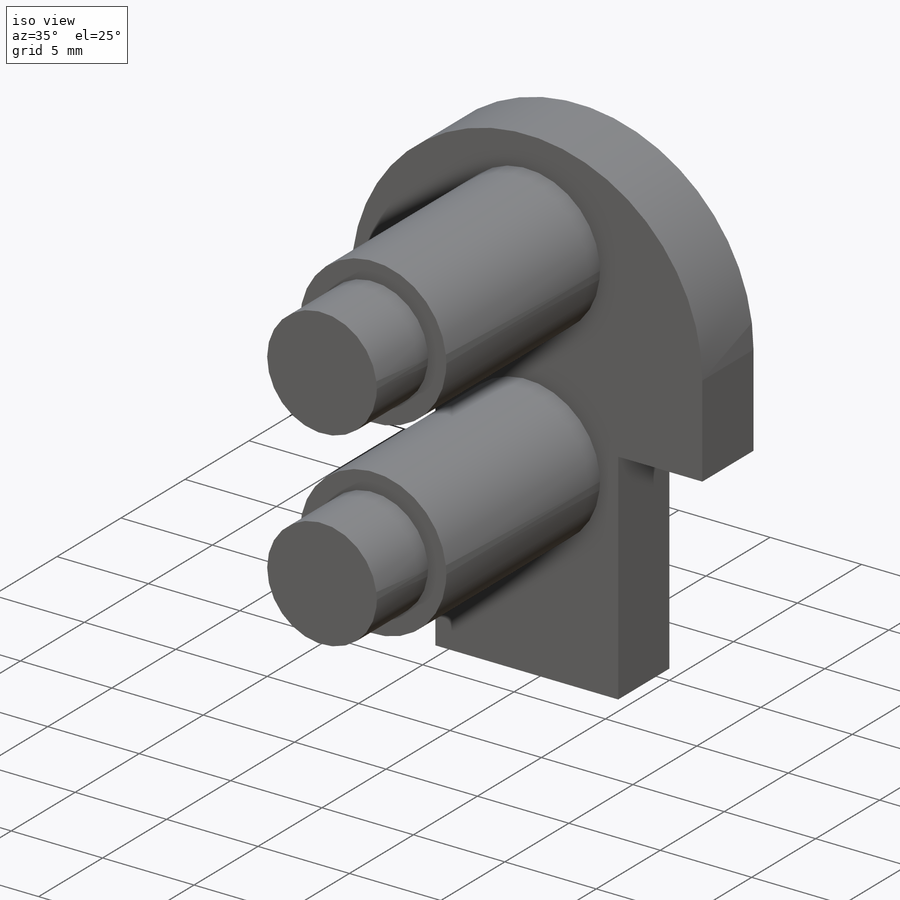
[diagram: iso view]
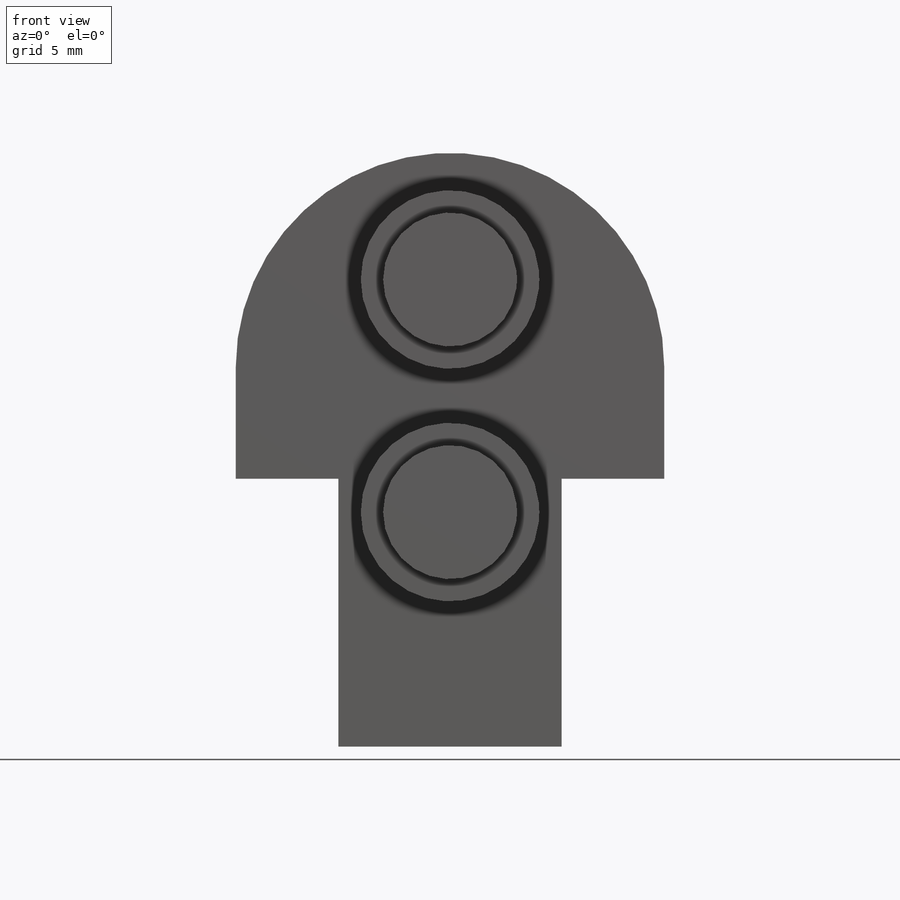
[diagram: front view]
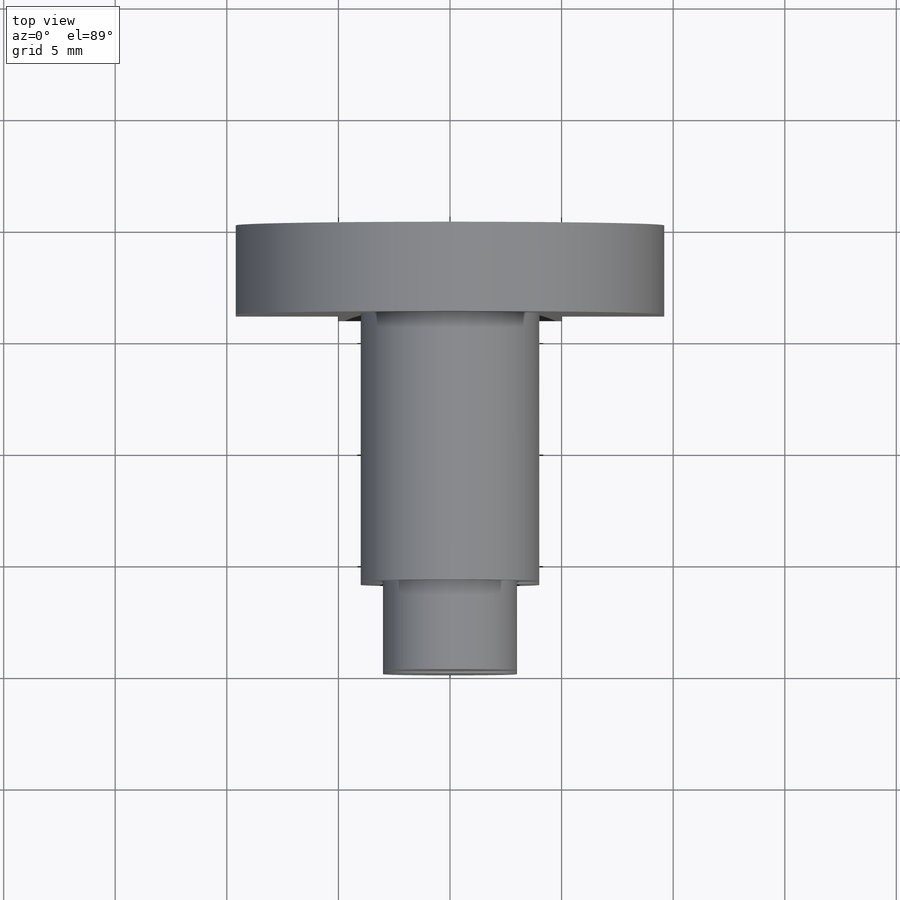
[diagram: top view]
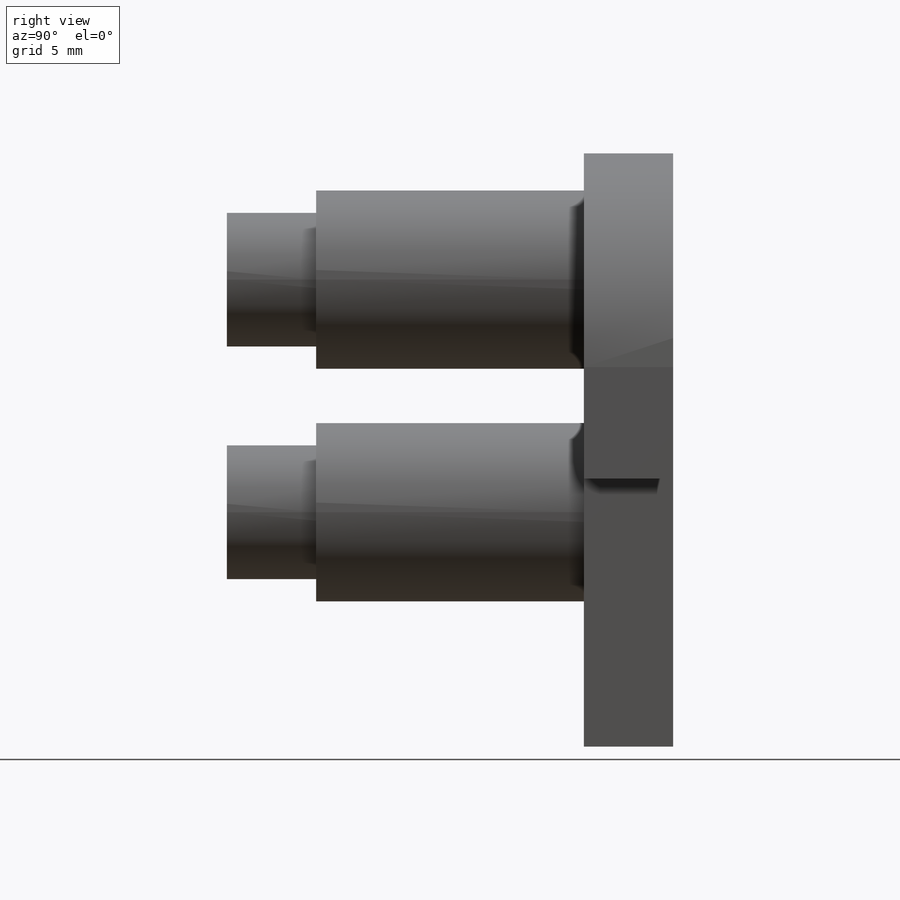
[diagram: right view]
SOLIDWORKS PART (.sldprt)
format: sldprt  version: not decoded by parser v0  size: 242,688 bytes
history: native  units: mm
features: sketch x4, extrude x3, material x1, cut_extrude x1 (+13 scaffold rows collapsed)
feature tree (22):
  scaffold x13  (default folders/planes/origin — collapsed)
  material  "Material <not specified>"
  sketch  "Sketch1"  dims[c1.D5=3.0mm c1.D6=5.0mm c2.D5=~13.691582mm c2.D6=5.0mm c2.D1=4.0mm c2.D2=4.0mm c2.D3=4.0mm c2.D4=10.0mm c2.D7=3.0mm c3.D5=14.0mm c3.D7=9.5mm c3.D2=2.0mm c3.D3=3.5mm c3.D4=6.5mm c4.D5=8.0mm c4.D6=14.0mm c4.D7=4.0mm c4.D2=2.0mm c4.D3=3.5mm c4.D4=6.5mm c5.D5=14.0mm c5.D6=~7.901924mm c5.D7=10.5mm c5.D8=~13.098076mm c5.D9=~17.401924mm c5.D10=20.0mm c5.D11=22.0mm c5.D12=~22.598076mm c6.D6=~7.901924mm c6.D7=20.0mm c6.D5=4.0mm c6.D8=4.0mm c7.D5=2.5mm c7.D8=2.5mm c7.D9=4.0mm c7.D10=4.0mm c7.D12=2.5mm c8.D8=4.6mm c8.D2=5.7mm]
  extrude  "Boss-Extrude1"  Depth=4mm
  sketch  "Sketch2"
  cut_extrude  "Cut-Extrude1"  [1 undecoded]
  sketch  "Sketch4"  dims[c1.D7=~6.581793mm c1.D3=8.0mm c1.D1=2.5mm c1.D2=4.0mm c2.D3=4.0mm c2.D4=2.5mm c2.D5=4.6mm c2.D6=5.7mm c2.D1=10.5mm c2.D2=5.0mm c3.D1=10.5mm c3.D2=5.0mm c3.D4=~10.421172mm]
  extrude  "Boss-Extrude2"  Depth=16mm
  sketch  "Sketch5"  dims[D1=10.5mm]
  extrude  "Boss-Extrude3"  Depth=4mm
decode coverage: 6 of 8 modeling features carry decoded parameters
note: ~ marks probable driven/reference dimensions
note: 1 parameter value undecoded
note: suppression state not decoded; provenance and decode notes live in map.json
